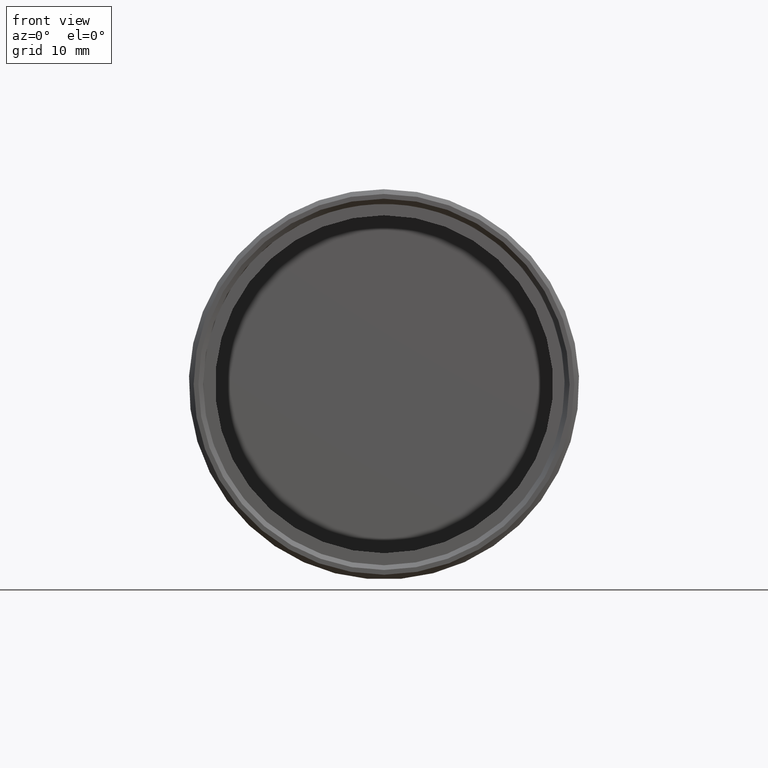
[diagram: clean part render]
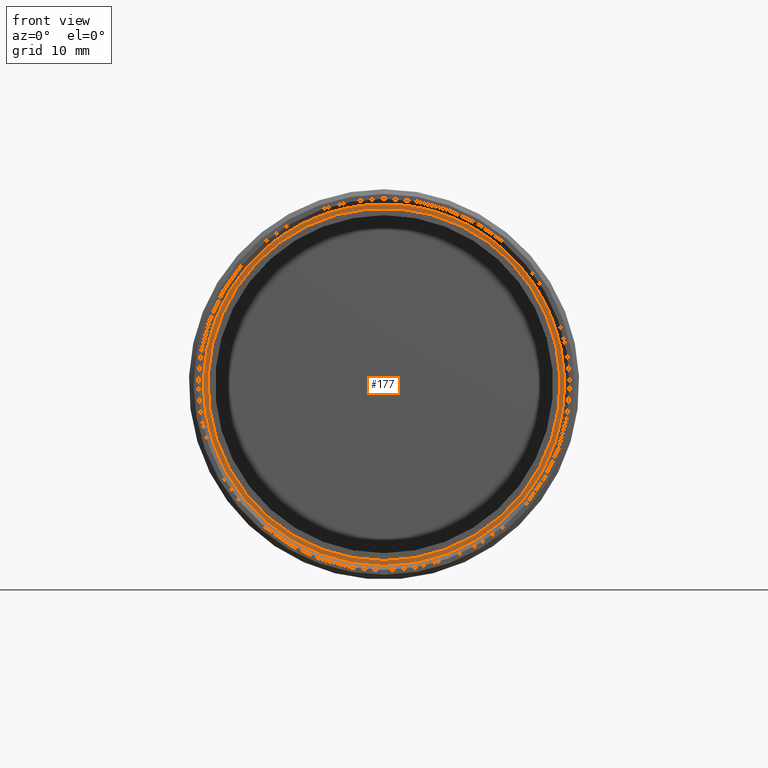
[diagram: same view with one face highlighted and labeled with its STEP entity id]
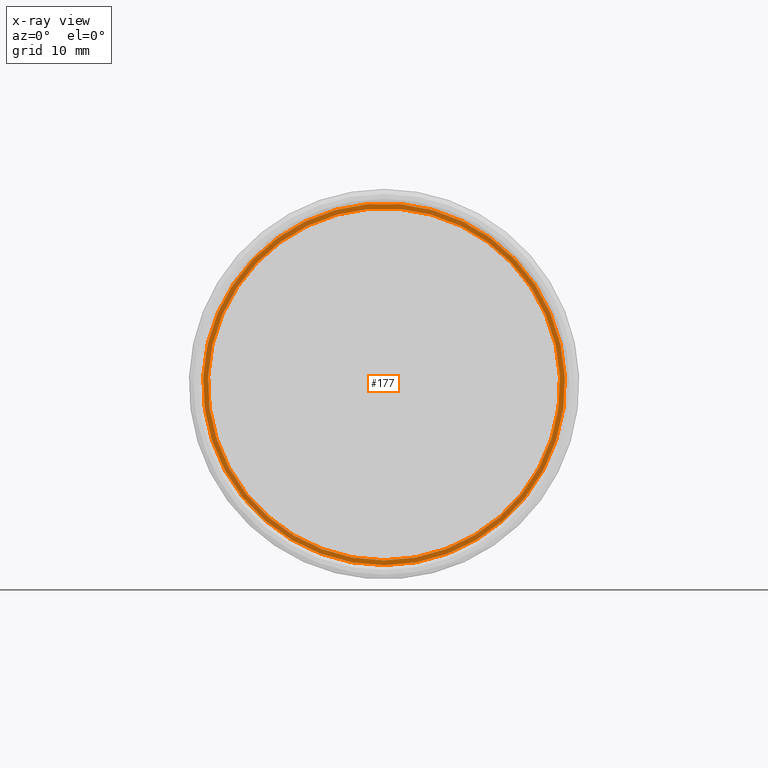
[diagram: x-ray of the same camera — body ghosted, the highlighted face saturated]
A machine part, front view. The second image highlights one B-rep face of the part: STEP entity #177.
The next image is the same camera in x-ray: the body ghosted, the highlighted face saturated — about 0% of this face is hidden behind the body in this view.
In plain terms, the highlighted planar face has unit normal (0, -1, 0).
Its self-contained STEP definition (entity closure, byte-faithful):
#6 = EDGE_CURVE ( 'NONE', #265, #265, #223, .T. ) ;
#15 = EDGE_LOOP ( 'NONE', ( #330 ) ) ;
#29 = DIRECTION ( 'NONE',  ( 0.000000000000000000, -1.000000000000000000, 0.000000000000000000 ) ) ;
#32 = CARTESIAN_POINT ( 'NONE',  ( 0.000000000000000000, 3.000000000000000000, 0.000000000000000000 ) ) ;
#49 = VERTEX_POINT ( 'NONE', #245 ) ;
#55 = AXIS2_PLACEMENT_3D ( 'NONE', #283, #29, #142 ) ;
#75 = EDGE_CURVE ( 'NONE', #49, #49, #97, .T. ) ;
#78 = EDGE_LOOP ( 'NONE', ( #361 ) ) ;
#97 = CIRCLE ( 'NONE', #187, 18.99999999999999645 ) ;
#114 = AXIS2_PLACEMENT_3D ( 'NONE', #32, #197, #337 ) ;
#141 = DIRECTION ( 'NONE',  ( 0.000000000000000000, -1.000000000000000000, 0.000000000000000000 ) ) ;
#142 = DIRECTION ( 'NONE',  ( 0.000000000000000000, -0.000000000000000000, -1.000000000000000000 ) ) ;
#159 = CARTESIAN_POINT ( 'NONE',  ( 0.000000000000000000, 3.000000000000000000, -18.50000000000000000 ) ) ;
#165 = DIRECTION ( 'NONE',  ( 0.000000000000000000, 0.000000000000000000, -1.000000000000000000 ) ) ;
#167 = PLANE ( 'NONE',  #55 ) ;
#177 = ADVANCED_FACE ( 'NONE', ( #195, #309 ), #167, .T. ) ;
#187 = AXIS2_PLACEMENT_3D ( 'NONE', #251, #141, #165 ) ;
#195 = FACE_BOUND ( 'NONE', #15, .T. ) ;
#197 = DIRECTION ( 'NONE',  ( 0.000000000000000000, -1.000000000000000000, 0.000000000000000000 ) ) ;
#223 = CIRCLE ( 'NONE', #114, 18.50000000000000000 ) ;
#245 = CARTESIAN_POINT ( 'NONE',  ( 0.000000000000000000, 3.000000000000000000, -18.99999999999999645 ) ) ;
#251 = CARTESIAN_POINT ( 'NONE',  ( 0.000000000000000000, 3.000000000000000000, 0.000000000000000000 ) ) ;
#265 = VERTEX_POINT ( 'NONE', #159 ) ;
#283 = CARTESIAN_POINT ( 'NONE',  ( 0.000000000000000000, 3.000000000000000000, 0.000000000000000000 ) ) ;
#309 = FACE_OUTER_BOUND ( 'NONE', #78, .T. ) ;
#330 = ORIENTED_EDGE ( 'NONE', *, *, #6, .F. ) ;
#337 = DIRECTION ( 'NONE',  ( 0.000000000000000000, 0.000000000000000000, -1.000000000000000000 ) ) ;
#361 = ORIENTED_EDGE ( 'NONE', *, *, #75, .T. ) ;